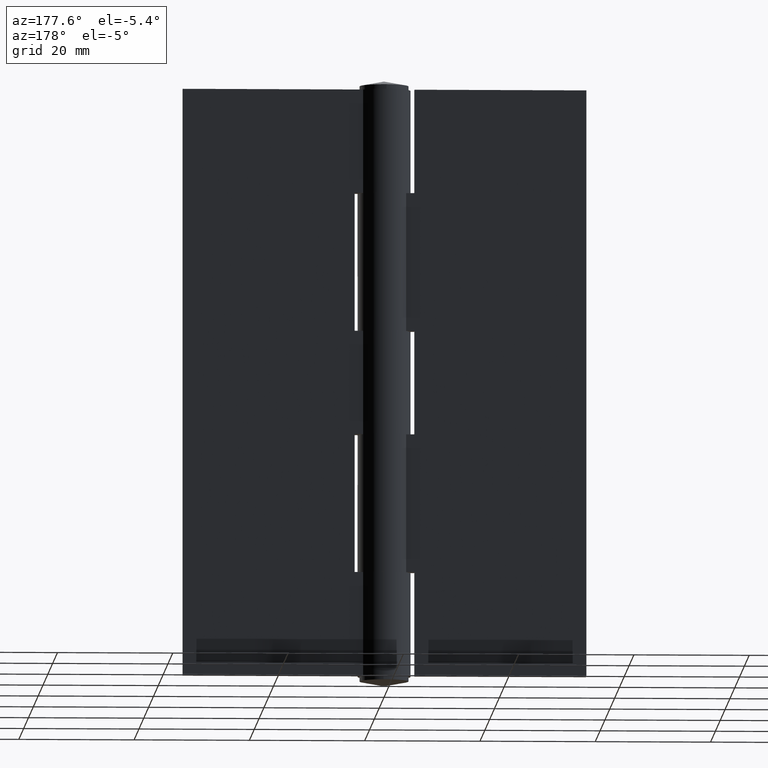
[diagram: clean part render]
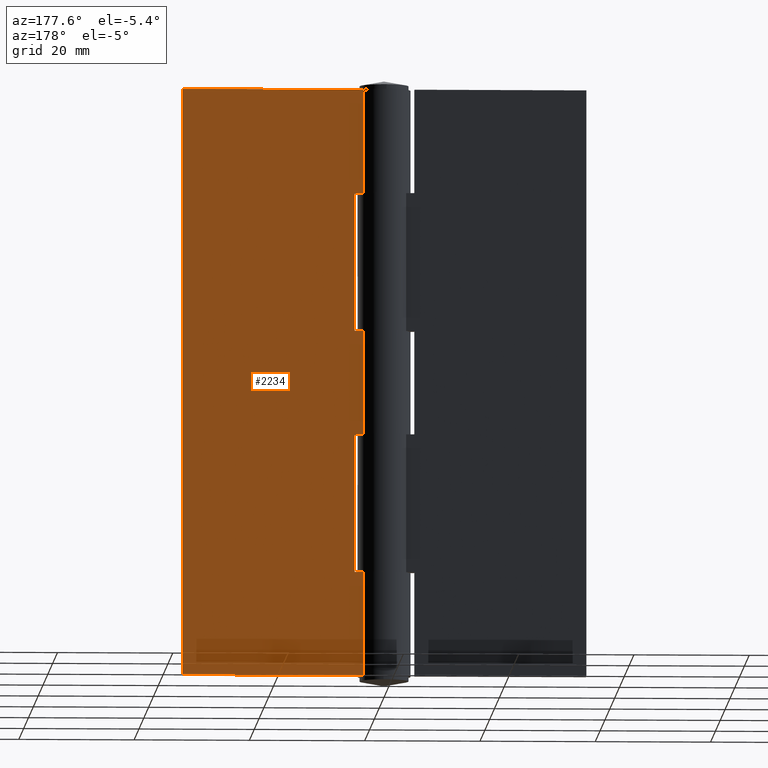
[diagram: same view with one face highlighted and labeled with its STEP entity id]
A machine part, auxiliary view. The second image highlights one B-rep face of the part: STEP entity #2234.
In plain terms, the highlighted face is a freeform B-spline surface patch.
Its self-contained STEP definition (entity closure, byte-faithful):
#1701=CARTESIAN_POINT('',(3.724245614886200,2.699999000000000,60.000014999999998));
#1702=VERTEX_POINT('',#1701);
#1703=CARTESIAN_POINT('',(3.724245614886200,2.699999000000000,42.000015000000047));
#1704=VERTEX_POINT('',#1703);
#1705=CARTESIAN_POINT('',(3.724245614886200,2.699999000000000,60.000014999999998));
#1706=CARTESIAN_POINT('',(3.724245614886200,2.699999000000000,42.000015000000047));
#1707=QUASI_UNIFORM_CURVE('',1,(#1705,#1706),.UNSPECIFIED.,.F.,.U.);
#1708=EDGE_CURVE('',#1702,#1704,#1707,.T.);
#1788=CARTESIAN_POINT('',(5.199997000000000,2.699999000000065,42.000015000000047));
#1789=VERTEX_POINT('',#1788);
#1799=CARTESIAN_POINT('',(5.199997000000000,2.699999000000065,42.000015000000047));
#1800=CARTESIAN_POINT('',(3.724245614886200,2.699999000000000,42.000015000000047));
#1801=QUASI_UNIFORM_CURVE('',1,(#1799,#1800),.UNSPECIFIED.,.F.,.U.);
#1802=EDGE_CURVE('',#1789,#1704,#1801,.T.);
#1812=CARTESIAN_POINT('',(5.199997000000000,2.699999000000065,18.000015000000051));
#1813=VERTEX_POINT('',#1812);
#1821=CARTESIAN_POINT('',(5.199997000000000,2.699999000000065,18.000015000000051));
#1822=CARTESIAN_POINT('',(5.199997000000000,2.699999000000065,42.000015000000047));
#1823=QUASI_UNIFORM_CURVE('',1,(#1821,#1822),.UNSPECIFIED.,.F.,.U.);
#1824=EDGE_CURVE('',#1813,#1789,#1823,.T.);
#1836=CARTESIAN_POINT('',(3.724245614886200,2.699999000000000,18.000015000000051));
#1837=VERTEX_POINT('',#1836);
#1881=CARTESIAN_POINT('',(3.724245614886200,2.699999000000000,18.000015000000051));
#1882=CARTESIAN_POINT('',(5.199997000000000,2.699999000000065,18.000015000000051));
#1883=QUASI_UNIFORM_CURVE('',1,(#1881,#1882),.UNSPECIFIED.,.F.,.U.);
#1884=EDGE_CURVE('',#1837,#1813,#1883,.T.);
#1894=CARTESIAN_POINT('',(5.199997000000000,2.699999000000065,84.000015000000090));
#1895=VERTEX_POINT('',#1894);
#1910=CARTESIAN_POINT('',(3.724245614886200,2.699999000000000,84.000015000000090));
#1911=VERTEX_POINT('',#1910);
#1947=CARTESIAN_POINT('',(5.199997000000000,2.699999000000065,84.000015000000090));
#1948=CARTESIAN_POINT('',(3.724245614886200,2.699999000000000,84.000015000000090));
#1949=QUASI_UNIFORM_CURVE('',1,(#1947,#1948),.UNSPECIFIED.,.F.,.U.);
#1950=EDGE_CURVE('',#1895,#1911,#1949,.T.);
#1960=CARTESIAN_POINT('',(5.199997000000000,2.699999000000065,60.000014999999998));
#1961=VERTEX_POINT('',#1960);
#1969=CARTESIAN_POINT('',(5.199997000000000,2.699999000000065,60.000014999999998));
#1970=CARTESIAN_POINT('',(5.199997000000000,2.699999000000065,84.000015000000090));
#1971=QUASI_UNIFORM_CURVE('',1,(#1969,#1970),.UNSPECIFIED.,.F.,.U.);
#1972=EDGE_CURVE('',#1961,#1895,#1971,.T.);
#1987=CARTESIAN_POINT('',(3.724245614886200,2.699999000000000,60.000014999999998));
#1988=CARTESIAN_POINT('',(5.199997000000000,2.699999000000065,60.000014999999998));
#1989=QUASI_UNIFORM_CURVE('',1,(#1987,#1988),.UNSPECIFIED.,.F.,.U.);
#1990=EDGE_CURVE('',#1702,#1961,#1989,.T.);
#2002=CARTESIAN_POINT('',(3.724245614886200,2.699999000000000,0.0));
#2003=VERTEX_POINT('',#2002);
#2038=CARTESIAN_POINT('',(35.0,2.699999000000000,0.0));
#2039=VERTEX_POINT('',#2038);
#2040=CARTESIAN_POINT('',(3.724245614886200,2.699999000000000,0.0));
#2041=CARTESIAN_POINT('',(35.0,2.699999000000000,0.0));
#2042=QUASI_UNIFORM_CURVE('',1,(#2040,#2041),.UNSPECIFIED.,.F.,.U.);
#2043=EDGE_CURVE('',#2003,#2039,#2042,.T.);
#2067=CARTESIAN_POINT('',(3.724245614886200,2.699999000000000,102.000015000000000));
#2068=VERTEX_POINT('',#2067);
#2111=CARTESIAN_POINT('',(35.0,2.699999000000000,102.000015000000000));
#2112=VERTEX_POINT('',#2111);
#2118=CARTESIAN_POINT('',(3.724245614886200,2.699999000000000,102.000015000000000));
#2119=CARTESIAN_POINT('',(35.0,2.699999000000000,102.000015000000000));
#2120=QUASI_UNIFORM_CURVE('',1,(#2118,#2119),.UNSPECIFIED.,.F.,.U.);
#2121=EDGE_CURVE('',#2068,#2112,#2120,.T.);
#2132=CARTESIAN_POINT('',(35.0,2.699999000000000,102.000015000000000));
#2133=CARTESIAN_POINT('',(35.0,2.699999000000000,0.0));
#2134=QUASI_UNIFORM_CURVE('',1,(#2132,#2133),.UNSPECIFIED.,.F.,.U.);
#2135=EDGE_CURVE('',#2112,#2039,#2134,.T.);
#2184=CARTESIAN_POINT('',(3.724245614886200,2.699999000000000,102.000015000000000));
#2185=CARTESIAN_POINT('',(3.724245614886200,2.699999000000000,84.000015000000090));
#2186=QUASI_UNIFORM_CURVE('',1,(#2184,#2185),.UNSPECIFIED.,.F.,.U.);
#2187=EDGE_CURVE('',#2068,#1911,#2186,.T.);
#2211=CARTESIAN_POINT('',(2.162021743968248,2.699999000000000,-5.094900551554180));
#2212=CARTESIAN_POINT('',(2.162021743968248,2.699999000000000,107.094918287407790));
#2213=CARTESIAN_POINT('',(36.562224709799061,2.699999000000000,-5.094900551554180));
#2214=CARTESIAN_POINT('',(36.562224709799061,2.699999000000000,107.094918287407790));
#2215=B_SPLINE_SURFACE_WITH_KNOTS('',1,1,((#2211,#2213),(#2212,#2214)),.UNSPECIFIED.,.F.,.F.,.U.,(2,2),(2,2),(0.0,112.189818838962000),(0.0,34.400202965830822),.UNSPECIFIED.);
#2216=CARTESIAN_POINT('',(3.724245614886200,2.699999000000000,18.000015000000051));
#2217=CARTESIAN_POINT('',(3.724245614886200,2.699999000000000,0.0));
#2218=QUASI_UNIFORM_CURVE('',1,(#2216,#2217),.UNSPECIFIED.,.F.,.U.);
#2219=EDGE_CURVE('',#1837,#2003,#2218,.T.);
#2220=ORIENTED_EDGE('',*,*,#2219,.F.);
#2221=ORIENTED_EDGE('',*,*,#1884,.T.);
#2222=ORIENTED_EDGE('',*,*,#1824,.T.);
#2223=ORIENTED_EDGE('',*,*,#1802,.T.);
#2224=ORIENTED_EDGE('',*,*,#1708,.F.);
#2225=ORIENTED_EDGE('',*,*,#1990,.T.);
#2226=ORIENTED_EDGE('',*,*,#1972,.T.);
#2227=ORIENTED_EDGE('',*,*,#1950,.T.);
#2228=ORIENTED_EDGE('',*,*,#2187,.F.);
#2229=ORIENTED_EDGE('',*,*,#2121,.T.);
#2230=ORIENTED_EDGE('',*,*,#2135,.T.);
#2231=ORIENTED_EDGE('',*,*,#2043,.F.);
#2232=EDGE_LOOP('',(#2220,#2221,#2222,#2223,#2224,#2225,#2226,#2227,#2228,#2229,#2230,#2231));
#2233=FACE_OUTER_BOUND('',#2232,.T.);
#2234=ADVANCED_FACE('',(#2233),#2215,.T.);